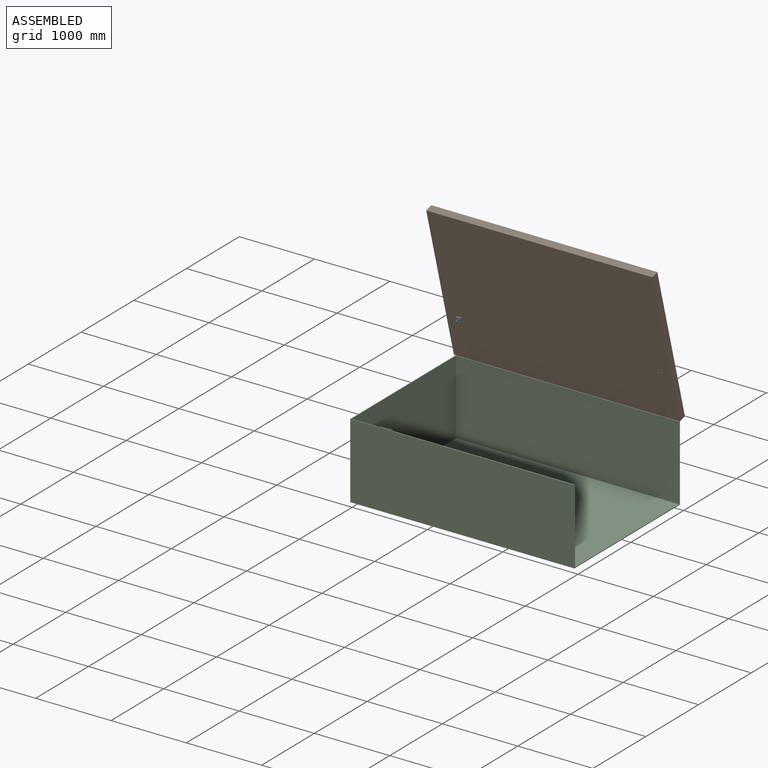
[diagram: assembled view]
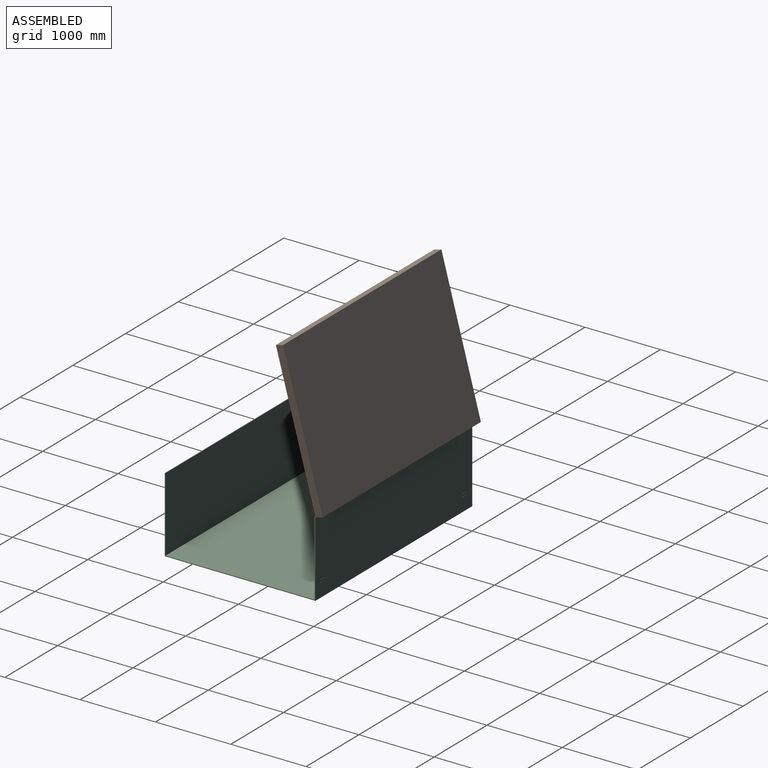
[diagram: assembled view, second angle]
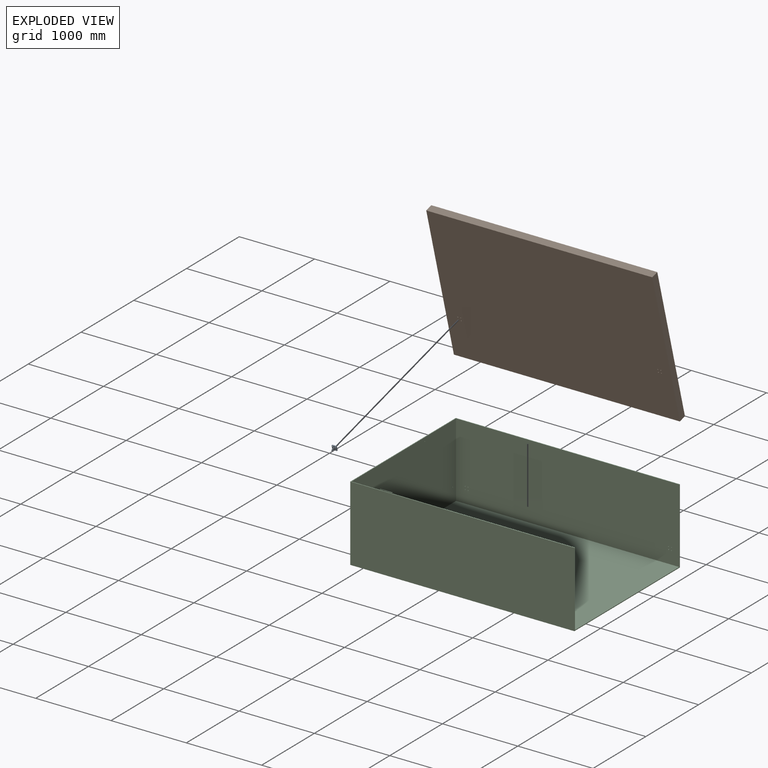
[diagram: exploded view]
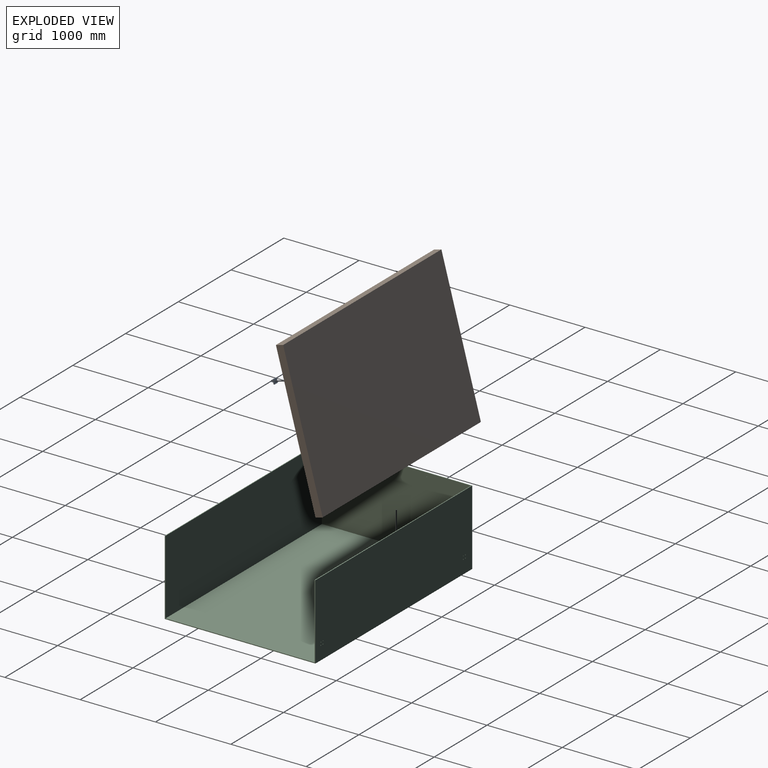
[diagram: exploded view, second angle]
ASSEMBLY  parts=3 mates=2
PART A: 60 faces, bbox 60x63.1x60 mm
  f0: plane 60x60mm, normal (0,-1,0), area 1901.3mm2, adj f1,f2,f3,f4,f28,f29,f30,f31
  f1: plane 60x15mm, normal (0,0,1), area 900mm2, adj f0,f2,f4,f5
  f2: plane 60x15mm, normal (-1,0,0), area 900mm2, adj f0,f1,f3,f5
  f3: plane 60x15mm, normal (0,0,-1), area 900mm2, adj f0,f2,f4,f5
  f4: plane 60x15mm, normal (1,0,0), area 900mm2, adj f0,f1,f3,f5
  f5: plane 60x60mm, normal (0,1,0), area 3260.2mm2, adj f1,f2,f3,f4,f33,f35,f37,f39
  f6: cylinder r=5mm len=10mm, axis (0,-1,0), area 301.6mm2, adj f36,f37
  f7: plane 18x18mm, normal (0,-1,0), area 169.5mm2, adj f8,f36
  f8: cylinder r=9mm len=18mm, axis (0,-1,0), area 271.4mm2, adj f7,f29
  f9: cylinder r=5mm len=10mm, axis (0,-1,0), area 301.6mm2, adj f34,f35
  f10: plane 18x18mm, normal (0,-1,0), area 169.5mm2, adj f11,f34
  f11: cylinder r=9mm len=18mm, axis (0,-1,0), area 271.4mm2, adj f10,f30
  f12: cylinder r=5mm len=10mm, axis (0,-1,0), area 301.6mm2, adj f32,f33
  f13: plane 18x18mm, normal (0,-1,0), area 169.5mm2, adj f14,f32
  f14: cylinder r=9mm len=18mm, axis (0,-1,0), area 271.4mm2, adj f13,f31
  f15: cylinder r=5mm len=10mm, axis (0,-1,0), area 301.6mm2, adj f38,f39
  f16: plane 18x18mm, normal (0,-1,0), area 169.5mm2, adj f17,f38
  f17: cylinder r=9mm len=18mm, axis (0,-1,0), area 271.4mm2, adj f16,f28
  f18: plane 29x6mm, normal (0,0,1), area 174mm2, adj f25,f40,f45,f53
  f19: plane 41x25mm, normal (-1,0,0), area 842.4mm2, adj f27,f40,f41,f42,f43,f44,f50
  f20: plane 29x6mm, normal (0,0,-1), area 174mm2, adj f24,f44,f49,f54
  f21: plane 41x25mm, normal (1,0,0), area 842.4mm2, adj f26,f45,f46,f47,f48,f49,f57
  f22: plane 6x1mm, normal (0,-1,0), area 5.8mm2, adj f24,f25,f42,f47,f59
  f23: cylinder r=6mm len=12mm, axis (1,0,0), area 286.5mm2, adj f26,f27
  f24: cylinder r=13mm len=13mm, axis (-1,0,0), area 122.5mm2, adj f20,f22,f43,f48
  f25: cylinder r=13mm len=13mm, axis (1,0,0), area 122.5mm2, adj f18,f22,f41,f46
  f26: cone r=6.2mm half-angle=45deg, axis (1,0,0), area 10.8mm2, adj f21,f23
  f27: cone r=6mm half-angle=45deg, axis (-1,0,0), area 10.8mm2, adj f19,f23
  f28: cone r=9mm half-angle=45deg, axis (0,-1,0), area 16.2mm2, adj f0,f17
  f29: cone r=9mm half-angle=45deg, axis (0,-1,0), area 16.2mm2, adj f0,f8
  f30: cone r=9mm half-angle=45deg, axis (0,-1,0), area 16.2mm2, adj f0,f11
  f31: cone r=9mm half-angle=45deg, axis (0,-1,0), area 16.2mm2, adj f0,f14
  f32: cone r=5mm half-angle=45deg, axis (0,-1,0), area 9.1mm2, adj f12,f13
  f33: cone r=5mm half-angle=45deg, axis (0,1,0), area 9.1mm2, adj f5,f12
  f34: cone r=5mm half-angle=45deg, axis (0,-1,0), area 9.1mm2, adj f9,f10
  f35: cone r=5mm half-angle=45deg, axis (0,1,0), area 9.1mm2, adj f5,f9
  f36: cone r=5mm half-angle=45deg, axis (0,-1,0), area 9.1mm2, adj f6,f7
  f37: cone r=5mm half-angle=45deg, axis (0,1,0), area 9.1mm2, adj f5,f6
  f38: cone r=5mm half-angle=45deg, axis (0,-1,0), area 9.1mm2, adj f15,f16
  f39: cone r=5mm half-angle=45deg, axis (0,1,0), area 9.1mm2, adj f5,f15
  f40: cylinder r=1mm len=29mm, axis (0,-1,0), area 45.6mm2, adj f18,f19,f41,f51
  f41: torus R=12mm, axis (1,0,0), area 31.2mm2, adj f19,f25,f40,f42
  f42: cylinder r=1mm len=1mm, axis (0,0,1), area 1.6mm2, adj f19,f22,f41,f43
  f43: torus R=12mm, axis (1,0,0), area 31.2mm2, adj f19,f24,f42,f44
  f44: cylinder r=1mm len=29mm, axis (0,1,0), area 45.6mm2, adj f19,f20,f43,f52
  f45: cylinder r=1mm len=29mm, axis (0,1,0), area 45.6mm2, adj f18,f21,f46,f55
  f46: torus R=12mm, axis (1,0,0), area 31.2mm2, adj f21,f25,f45,f47
  f47: cylinder r=1mm len=1mm, axis (0,0,-1), area 1.6mm2, adj f21,f22,f46,f48
  f48: torus R=12mm, axis (1,0,0), area 31.2mm2, adj f21,f24,f47,f49
  f49: cylinder r=1mm len=29mm, axis (0,-1,0), area 45.6mm2, adj f20,f21,f48,f56
  f50: cylinder r=5mm len=25mm, axis (0,0,-1), area 196.3mm2, adj f0,f19,f51,f52
  f51: torus R=6mm, axis (0,-1,0), area 34.8mm2, adj f0,f40,f50,f53
  f52: torus R=6mm, axis (0,-1,0), area 34.8mm2, adj f0,f44,f50,f54
  f53: cylinder r=5mm len=6mm, axis (-1,0,0), area 47.1mm2, adj f0,f18,f51,f55
  f54: cylinder r=5mm len=6mm, axis (1,0,0), area 47.1mm2, adj f0,f20,f52,f56
  f55: torus R=6mm, axis (0,-1,0), area 34.8mm2, adj f0,f45,f53,f57
  f56: torus R=6mm, axis (0,-1,0), area 34.8mm2, adj f0,f49,f54,f57
  f57: cylinder r=5mm len=25mm, axis (0,0,1), area 196.3mm2, adj f0,f21,f55,f56
  f58: cone r=0mm half-angle=59deg, axis (0,-1,0), area 0.2mm2, adj f59
  f59: cylinder r=0.25mm len=2mm, axis (0,-1,0), area 3.1mm2, adj f22,f58
PART B: 22 faces, bbox 3000x100x2000 mm
  f0: plane 3000x100mm, normal (0,0,1), area 300000mm2, adj f1,f3,f4,f5
  f1: plane 2000x100mm, normal (-1,0,0), area 200000mm2, adj f0,f2,f4,f5
  f2: plane 3000x100mm, normal (0,0,-1), area 300000mm2, adj f1,f3,f4,f5
  f3: plane 2000x100mm, normal (1,0,0), area 200000mm2, adj f0,f2,f4,f5
  f4: plane 3000x2000mm, normal (0,-1,0), area 5999371.7mm2, adj f0,f1,f2,f3,f7,f9,f11,f13
  f5: plane 3000x2000mm, normal (0,1,0), area 6000000mm2, adj f0,f1,f2,f3
  f6: cone r=0mm half-angle=59deg, axis (0,-1,0), area 91.6mm2, adj f7
  f7: cylinder r=5mm len=10mm, axis (0,-1,0), area 314.2mm2, adj f4,f6
  f8: cone r=0mm half-angle=59deg, axis (0,-1,0), area 91.6mm2, adj f9
  f9: cylinder r=5mm len=10mm, axis (0,-1,0), area 314.2mm2, adj f4,f8
  f10: cone r=0mm half-angle=59deg, axis (0,-1,0), area 91.6mm2, adj f11
  f11: cylinder r=5mm len=10mm, axis (0,-1,0), area 314.2mm2, adj f4,f10
  f12: cone r=0mm half-angle=59deg, axis (0,-1,0), area 91.6mm2, adj f13
  f13: cylinder r=5mm len=10mm, axis (0,-1,0), area 314.2mm2, adj f4,f12
  f14: cone r=0mm half-angle=59deg, axis (0,-1,0), area 91.6mm2, adj f15
  f15: cylinder r=5mm len=10mm, axis (0,-1,0), area 314.2mm2, adj f4,f14
  f16: cone r=0mm half-angle=59deg, axis (0,-1,0), area 91.6mm2, adj f17
  f17: cylinder r=5mm len=10mm, axis (0,-1,0), area 314.2mm2, adj f4,f16
  f18: cone r=0mm half-angle=59deg, axis (0,-1,0), area 91.6mm2, adj f19
  f19: cylinder r=5mm len=10mm, axis (0,-1,0), area 314.2mm2, adj f4,f18
  f20: cone r=0mm half-angle=59deg, axis (0,-1,0), area 91.6mm2, adj f21
  f21: cylinder r=5mm len=10mm, axis (0,-1,0), area 314.2mm2, adj f4,f20
PART C: 22 faces, bbox 2975x2000x1000 mm
  f0: plane 2975x2000mm, normal (0,0,-1), area 5950000mm2, adj f5,f6,f7,f19
  f1: plane 2975x2000mm, normal (0,0,1), area 79300mm2, adj f3,f4,f5,f6,f7,f8,f19
  f2: plane 2965x1980mm, normal (0,0,1), area 5870700mm2, adj f3,f4,f8,f19
  f3: plane 2965x990mm, normal (0,1,0), area 2935350mm2, adj f1,f2,f8,f19
  f4: plane 2965x990mm, normal (0,-1,0), area 2934721.7mm2, adj f1,f2,f8,f11,f12,f13,f14,f15
  f5: plane 2000x1000mm, normal (-1,0,0), area 1999842.9mm2, adj f0,f1,f6,f7,f9,f10
  f6: plane 2975x1000mm, normal (0,-1,0), area 2975000mm2, adj f0,f1,f5,f19
  f7: plane 2975x1000mm, normal (0,1,0), area 2974371.7mm2, adj f0,f1,f5,f11,f12,f13,f14,f15
  f8: plane 1980x990mm, normal (1,0,0), area 1959929.8mm2, adj f1,f2,f3,f4,f9,f10,f20
  f9: cylinder r=5mm len=10mm, axis (-1,0,0), area 314.2mm2, adj f5,f8
  f10: cylinder r=5mm len=10mm, axis (-1,0,0), area 314.2mm2, adj f5,f8
  f11: cylinder r=5mm len=10mm, axis (0,-1,0), area 314.2mm2, adj f4,f7
  f12: cylinder r=5mm len=10mm, axis (0,-1,0), area 314.2mm2, adj f4,f7
  f13: cylinder r=5mm len=10mm, axis (0,-1,0), area 314.2mm2, adj f4,f7
  f14: cylinder r=5mm len=10mm, axis (0,-1,0), area 314.2mm2, adj f4,f7
  f15: cylinder r=5mm len=10mm, axis (0,-1,0), area 314.2mm2, adj f4,f7
  f16: cylinder r=5mm len=10mm, axis (0,-1,0), area 314.2mm2, adj f4,f7
  f17: cylinder r=5mm len=10mm, axis (0,-1,0), area 314.2mm2, adj f4,f7
  f18: cylinder r=5mm len=10mm, axis (0,-1,0), area 314.2mm2, adj f4,f7
  f19: plane 2000x1000mm, normal (1,0,0), area 39800mm2, adj f0,f1,f2,f3,f4,f6,f7
  f20: cylinder r=6mm len=165mm, axis (-1,0,0), area 6220.4mm2, adj f8,f21
  f21: plane 12x12mm, normal (1,0,0), area 113.1mm2, adj f20
PLACE A rot(axis=(1,0,0),15.2deg) t=(-1928.85,498.76,1016.2)mm
PLACE B rot(axis=(1,0,0),15.2deg) t=(-603.85,436.27,1465.54)mm
PLACE C t=(-578.85,-349.81,-12.59)mm fixed
MATE fastened A.f6 <-> B.f6  axis (0,0.97,0.26) through (-1948.85,500.75,1037.47)mm
MATE revolute B.f3 <-> C.f19  axis (1,0,0) through (896.15,650.19,487.41)mm
